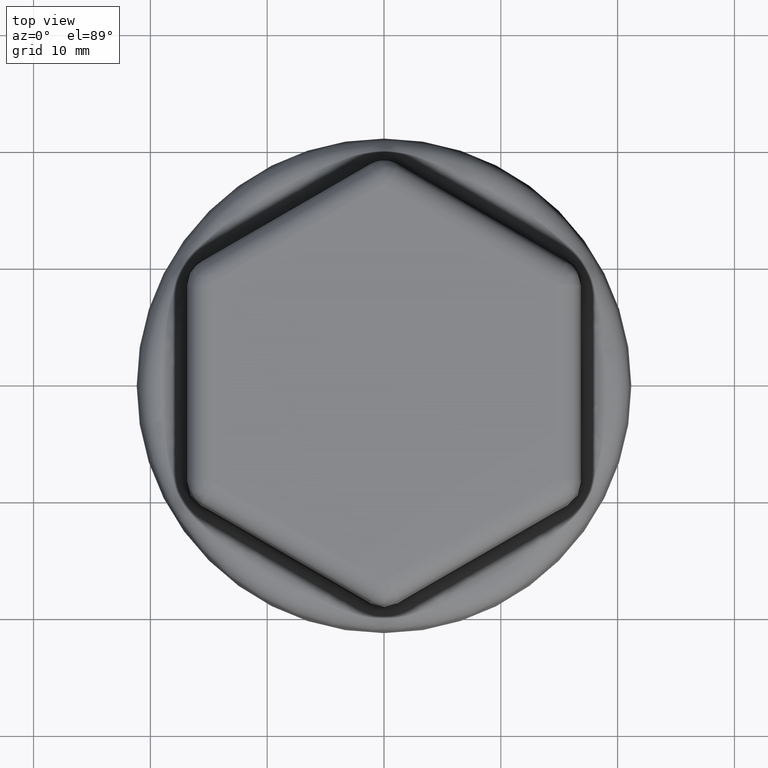
[diagram: clean part render]
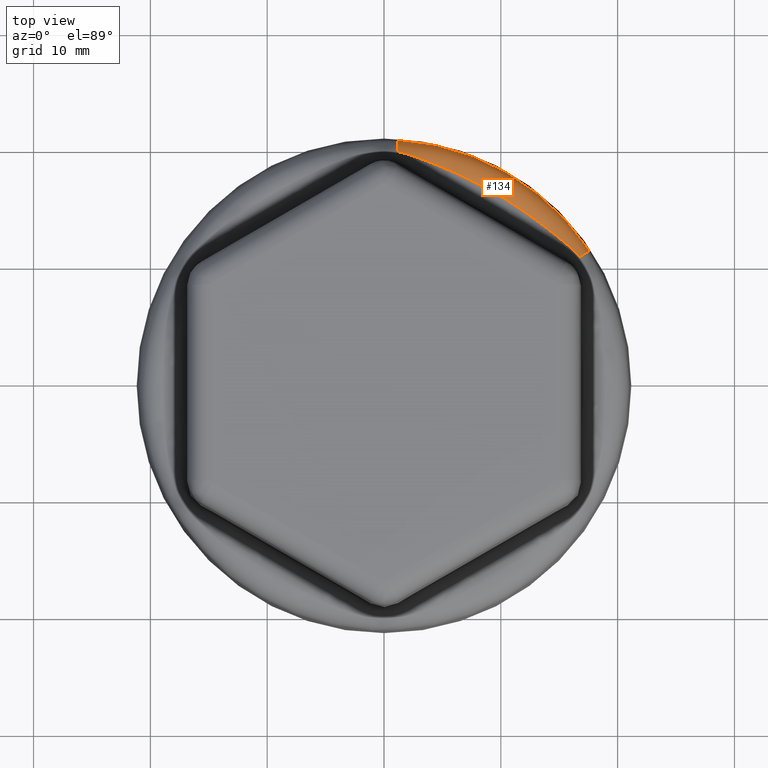
[diagram: same view with one face highlighted and labeled with its STEP entity id]
A machine part, top view. The second image highlights one B-rep face of the part: STEP entity #134.
In plain terms, the highlighted toroidal blend (fillet) surface has major radius 18.9973 mm and minor (blend) radius 2 mm.
Its self-contained STEP definition (entity closure, byte-faithful):
#134 = ADVANCED_FACE( '', ( #321 ), #322, .T. );
#321 = FACE_OUTER_BOUND( '', #1963, .T. );
#322 = TOROIDAL_SURFACE( '', #1964, 18.9972553080042, 2.00000000000000 );
#1963 = EDGE_LOOP( '', ( #4797, #4798, #4799, #4800, #4801, #4802, #4803, #4804 ) );
#1964 = AXIS2_PLACEMENT_3D( '', #4805, #4806, #4807 );
#4797 = ORIENTED_EDGE( '', *, *, #5178, .F. );
#4798 = ORIENTED_EDGE( '', *, *, #5362, .T. );
#4799 = ORIENTED_EDGE( '', *, *, #5358, .T. );
#4800 = ORIENTED_EDGE( '', *, *, #5363, .T. );
#4801 = ORIENTED_EDGE( '', *, *, #5335, .F. );
#4802 = ORIENTED_EDGE( '', *, *, #5364, .T. );
#4803 = ORIENTED_EDGE( '', *, *, #5365, .T. );
#4804 = ORIENTED_EDGE( '', *, *, #5366, .T. );
#4805 = CARTESIAN_POINT( '', ( 0.000000000000000, 0.000000000000000, 3.30000000000000 ) );
#4806 = DIRECTION( '', ( 0.000000000000000, 0.000000000000000, 1.00000000000000 ) );
#4807 = DIRECTION( '', ( 1.00000000000000, 0.000000000000000, 0.000000000000000 ) );
#5178 = EDGE_CURVE( '', #5468, #5469, #5470, .T. );
#5335 = EDGE_CURVE( '', #5730, #5731, #5732, .T. );
#5358 = EDGE_CURVE( '', #5768, #5766, #5769, .T. );
#5362 = EDGE_CURVE( '', #5468, #5768, #5774, .T. );
#5363 = EDGE_CURVE( '', #5766, #5731, #5775, .T. );
#5364 = EDGE_CURVE( '', #5730, #5776, #5777, .F. );
#5365 = EDGE_CURVE( '', #5776, #5778, #5779, .T. );
#5366 = EDGE_CURVE( '', #5778, #5469, #5780, .T. );
#5468 = VERTEX_POINT( '', #5928 );
#5469 = VERTEX_POINT( '', #5929 );
#5470 = CIRCLE( '', #5930, 18.9972553080042 );
#5730 = VERTEX_POINT( '', #6795 );
#5731 = VERTEX_POINT( '', #6796 );
#5732 = CIRCLE( '', #6797, 20.9945143775133 );
#5766 = VERTEX_POINT( '', #7015 );
#5768 = VERTEX_POINT( '', #7017 );
#5769 = B_SPLINE_CURVE_WITH_KNOTS( '', 3, ( #7018, #7019, #7020, #7021, #7022, #7023, #7024 ), .UNSPECIFIED., .F., .F., ( 4, 1, 2, 4 ), ( 0.000000000000000, 0.000261096288608198, 0.000522192577216396, 0.00104438515443279 ), .UNSPECIFIED. );
#5774 = B_SPLINE_CURVE_WITH_KNOTS( '', 3, ( #7048, #7049, #7050, #7051, #7052, #7053, #7054, #7055, #7056, #7057, #7058, #7059, #7060, #7061, #7062, #7063, #7064, #7065, #7066, #7067, #7068 ), .UNSPECIFIED., .F., .F., ( 4, 1, 2, 2, 2, 1, 2, 2, 2, 1, 1, 1, 4 ), ( 0.000000000000000, 0.000811143435117477, 0.00162228687023495, 0.00243343030535243, 0.00324457374046991, 0.00365014545802864, 0.00385293131680801, 0.00405571717558738, 0.00486686061070486, 0.00527243232826360, 0.00567800404582234, 0.00608357576338108, 0.00648914748093983 ), .UNSPECIFIED. );
#5775 = CIRCLE( '', #7069, 2.00000000000000 );
#5776 = VERTEX_POINT( '', #7070 );
#5777 = CIRCLE( '', #7071, 2.00000000000000 );
#5778 = VERTEX_POINT( '', #7072 );
#5779 = B_SPLINE_CURVE_WITH_KNOTS( '', 3, ( #7073, #7074, #7075, #7076, #7077, #7078, #7079 ), .UNSPECIFIED., .F., .F., ( 4, 2, 1, 4 ), ( 0.000000000000000, 0.000522192577417527, 0.000783288866126291, 0.00104438515483505 ), .UNSPECIFIED. );
#5780 = B_SPLINE_CURVE_WITH_KNOTS( '', 3, ( #7080, #7081, #7082, #7083, #7084, #7085, #7086, #7087, #7088, #7089, #7090, #7091, #7092, #7093, #7094, #7095, #7096, #7097, #7098, #7099 ), .UNSPECIFIED., .F., .F., ( 4, 1, 1, 1, 2, 2, 2, 2, 2, 2, 1, 4 ), ( 0.000000000000000, 0.000405447048165420, 0.000810894096330840, 0.00121634114449626, 0.00162178819266168, 0.00243268228899252, 0.00324357638532336, 0.00364902343348878, 0.00405447048165419, 0.00486536457798503, 0.00567625867431587, 0.00648715277064670 ), .UNSPECIFIED. );
#5928 = CARTESIAN_POINT( '', ( 10.8434121140804, 15.5985936212758, 5.30000000000000 ) );
#5929 = CARTESIAN_POINT( '', ( 8.08707228229459, 17.1899671651354, 5.30000000000000 ) );
#5930 = AXIS2_PLACEMENT_3D( '', #7934, #7935, #7936 );
#6795 = CARTESIAN_POINT( '', ( 1.17361369374676, 20.9616856394104, 3.40467191248589 ) );
#6796 = CARTESIAN_POINT( '', ( 17.5665454230008, 11.4972220927172, 3.40467191248589 ) );
#6797 = AXIS2_PLACEMENT_3D( '', #8223, #8224, #8225 );
#7015 = CARTESIAN_POINT( '', ( 16.7567250849031, 10.9671984564183, 5.01473537503107 ) );
#7017 = CARTESIAN_POINT( '', ( 16.0291174158463, 11.7105202754971, 5.10854424460451 ) );
#7018 = CARTESIAN_POINT( '', ( 16.0291174158463, 11.7105202754971, 5.10854424460451 ) );
#7019 = CARTESIAN_POINT( '', ( 16.0949165839662, 11.6538189799335, 5.09925152278361 ) );
#7020 = CARTESIAN_POINT( '', ( 16.2238083323483, 11.5377045839122, 5.08116080490673 ) );
#7021 = CARTESIAN_POINT( '', ( 16.3475074487211, 11.4163338084707, 5.06444503846374 ) );
#7022 = CARTESIAN_POINT( '', ( 16.5292794714912, 11.2304178894773, 5.04066252386143 ) );
#7023 = CARTESIAN_POINT( '', ( 16.6454374338313, 11.1013385621076, 5.02653642015715 ) );
#7024 = CARTESIAN_POINT( '', ( 16.7567250849031, 10.9671984564183, 5.01473537503111 ) );
#7048 = CARTESIAN_POINT( '', ( 10.8434121140804, 15.5985936212758, 5.30000000000000 ) );
#7049 = CARTESIAN_POINT( '', ( 11.0720040385834, 15.4535338575358, 5.30000000000000 ) );
#7050 = CARTESIAN_POINT( '', ( 11.5258730174604, 15.1587306583814, 5.29981879909327 ) );
#7051 = CARTESIAN_POINT( '', ( 11.9732434301091, 14.8547577473164, 5.29852488637557 ) );
#7052 = CARTESIAN_POINT( '', ( 12.4174488616776, 14.5463279598503, 5.29613281582899 ) );
#7053 = CARTESIAN_POINT( '', ( 12.6379690676262, 14.3898845863130, 5.29438858429580 ) );
#7054 = CARTESIAN_POINT( '', ( 13.0759479347156, 14.0726989855731, 5.28907585018196 ) );
#7055 = CARTESIAN_POINT( '', ( 13.2934065710600, 13.9119566985769, 5.28550887194038 ) );
#7056 = CARTESIAN_POINT( '', ( 13.6173908090891, 13.6677613391705, 5.27808058490861 ) );
#7057 = CARTESIAN_POINT( '', ( 13.7788322348068, 13.5448935558609, 5.27384420054009 ) );
#7058 = CARTESIAN_POINT( '', ( 13.9394671336266, 13.4209008350661, 5.26866237887986 ) );
#7059 = CARTESIAN_POINT( '', ( 14.0463801597309, 13.3379926470028, 5.26497743673022 ) );
#7060 = CARTESIAN_POINT( '', ( 14.0997524831416, 13.2964120064989, 5.26301969721981 ) );
#7061 = CARTESIAN_POINT( '', ( 14.3661223062736, 13.0879455013253, 5.25260466677470 ) );
#7062 = CARTESIAN_POINT( '', ( 14.5776022979221, 12.9194011067856, 5.24228691984252 ) );
#7063 = CARTESIAN_POINT( '', ( 14.8925008552243, 12.6641680105839, 5.22264679458890 ) );
#7064 = CARTESIAN_POINT( '', ( 15.1016595241160, 12.4932079010114, 5.20815880119613 ) );
#7065 = CARTESIAN_POINT( '', ( 15.4131289515986, 12.2344890110380, 5.18151110772262 ) );
#7066 = CARTESIAN_POINT( '', ( 15.7223821753621, 11.9736388417307, 5.14909056999073 ) );
#7067 = CARTESIAN_POINT( '', ( 15.9271075820252, 11.7984254854269, 5.12295094684732 ) );
#7068 = CARTESIAN_POINT( '', ( 16.0291174158463, 11.7105202754971, 5.10854424460452 ) );
#7069 = AXIS2_PLACEMENT_3D( '', #8266, #8267, #8268 );
#7070 = CARTESIAN_POINT( '', ( 1.11950992915449, 19.9953488359676, 5.01473537503076 ) );
#7071 = AXIS2_PLACEMENT_3D( '', #8269, #8270, #8271 );
#7072 = CARTESIAN_POINT( '', ( 2.12704934257111, 19.7368830199820, 5.10854424464769 ) );
#7073 = CARTESIAN_POINT( '', ( 1.11950992915449, 19.9953488359676, 5.01473537503076 ) );
#7074 = CARTESIAN_POINT( '', ( 1.29132249395031, 19.9660409558452, 5.02653642016141 ) );
#7075 = CARTESIAN_POINT( '', ( 1.46118745179085, 19.9299848732750, 5.04066252387215 ) );
#7076 = CARTESIAN_POINT( '', ( 1.71308137208687, 19.8655236433224, 5.06444503848574 ) );
#7077 = CARTESIAN_POINT( '', ( 1.88004105832798, 19.8190822202230, 5.08116066416742 ) );
#7078 = CARTESIAN_POINT( '', ( 2.04504499609438, 19.7655161233517, 5.09925152282485 ) );
#7079 = CARTESIAN_POINT( '', ( 2.12704934257111, 19.7368830199819, 5.10854424464774 ) );
#7080 = CARTESIAN_POINT( '', ( 2.12704934257111, 19.7368830199820, 5.10854424464769 ) );
#7081 = CARTESIAN_POINT( '', ( 2.25425414262033, 19.6924674688982, 5.12295907625309 ) );
#7082 = CARTESIAN_POINT( '', ( 2.50844409307381, 19.6027449015035, 5.14910652779254 ) );
#7083 = CARTESIAN_POINT( '', ( 2.88895669608375, 19.4653532832787, 5.18152218133593 ) );
#7084 = CARTESIAN_POINT( '', ( 3.26859687606449, 19.3250273710515, 5.20815765028763 ) );
#7085 = CARTESIAN_POINT( '', ( 3.52104905836813, 19.2294406207931, 5.22263574320182 ) );
#7086 = CARTESIAN_POINT( '', ( 3.89920597356088, 19.0844766442229, 5.24226201077468 ) );
#7087 = CARTESIAN_POINT( '', ( 4.15061439865286, 18.9857211631508, 5.25257132583490 ) );
#7088 = CARTESIAN_POINT( '', ( 4.65185192207545, 18.7837069891778, 5.26922389633318 ) );
#7089 = CARTESIAN_POINT( '', ( 4.90168124406224, 18.6804483317997, 5.27556287475685 ) );
#7090 = CARTESIAN_POINT( '', ( 5.27512406469744, 18.5219992022956, 5.28300042740963 ) );
#7091 = CARTESIAN_POINT( '', ( 5.39938836496638, 18.4685895524675, 5.28513197553903 ) );
#7092 = CARTESIAN_POINT( '', ( 5.64746664927671, 18.3605560393411, 5.28882502711155 ) );
#7093 = CARTESIAN_POINT( '', ( 5.77129045710854, 18.3059277795479, 5.29038657670826 ) );
#7094 = CARTESIAN_POINT( '', ( 6.14199845381575, 18.1402120301476, 5.29438081881603 ) );
#7095 = CARTESIAN_POINT( '', ( 6.38798887833739, 18.0273510607622, 5.29612814702573 ) );
#7096 = CARTESIAN_POINT( '', ( 6.87759128527019, 17.7966978068449, 5.29852387714489 ) );
#7097 = CARTESIAN_POINT( '', ( 7.36481528317333, 17.5611132955940, 5.29981936383902 ) );
#7098 = CARTESIAN_POINT( '', ( 7.84715125496471, 17.3154035007237, 5.30000000000000 ) );
#7099 = CARTESIAN_POINT( '', ( 8.08707228229459, 17.1899671651354, 5.30000000000000 ) );
#7934 = CARTESIAN_POINT( '', ( 0.000000000000000, 0.000000000000000, 5.30000000000000 ) );
#7935 = DIRECTION( '', ( 0.000000000000000, 0.000000000000000, 1.00000000000000 ) );
#7936 = DIRECTION( '', ( 1.00000000000000, 0.000000000000000, 0.000000000000000 ) );
#8223 = CARTESIAN_POINT( '', ( 0.000000000000000, 0.000000000000000, 3.40467191248589 ) );
#8224 = DIRECTION( '', ( 0.000000000000000, 0.000000000000000, -1.00000000000000 ) );
#8225 = DIRECTION( '', ( -1.00000000000000, 0.000000000000000, 0.000000000000000 ) );
#8266 = CARTESIAN_POINT( '', ( 15.8953973537884, 10.4034634714920, 3.30000000000000 ) );
#8267 = DIRECTION( '', ( -0.547629818245833, 0.836720731288544, -4.48493508309199E-016 ) );
#8268 = DIRECTION( '', ( -0.836720731288544, -0.547629818245833, 0.000000000000000 ) );
#8269 = CARTESIAN_POINT( '', ( 1.06196497676350, 18.9675496473746, 3.30000000000000 ) );
#8270 = DIRECTION( '', ( -0.998436318291882, 0.0559009688265892, 4.08422097100082E-015 ) );
#8271 = DIRECTION( '', ( -0.0559009688265892, -0.998436318291882, 0.000000000000000 ) );